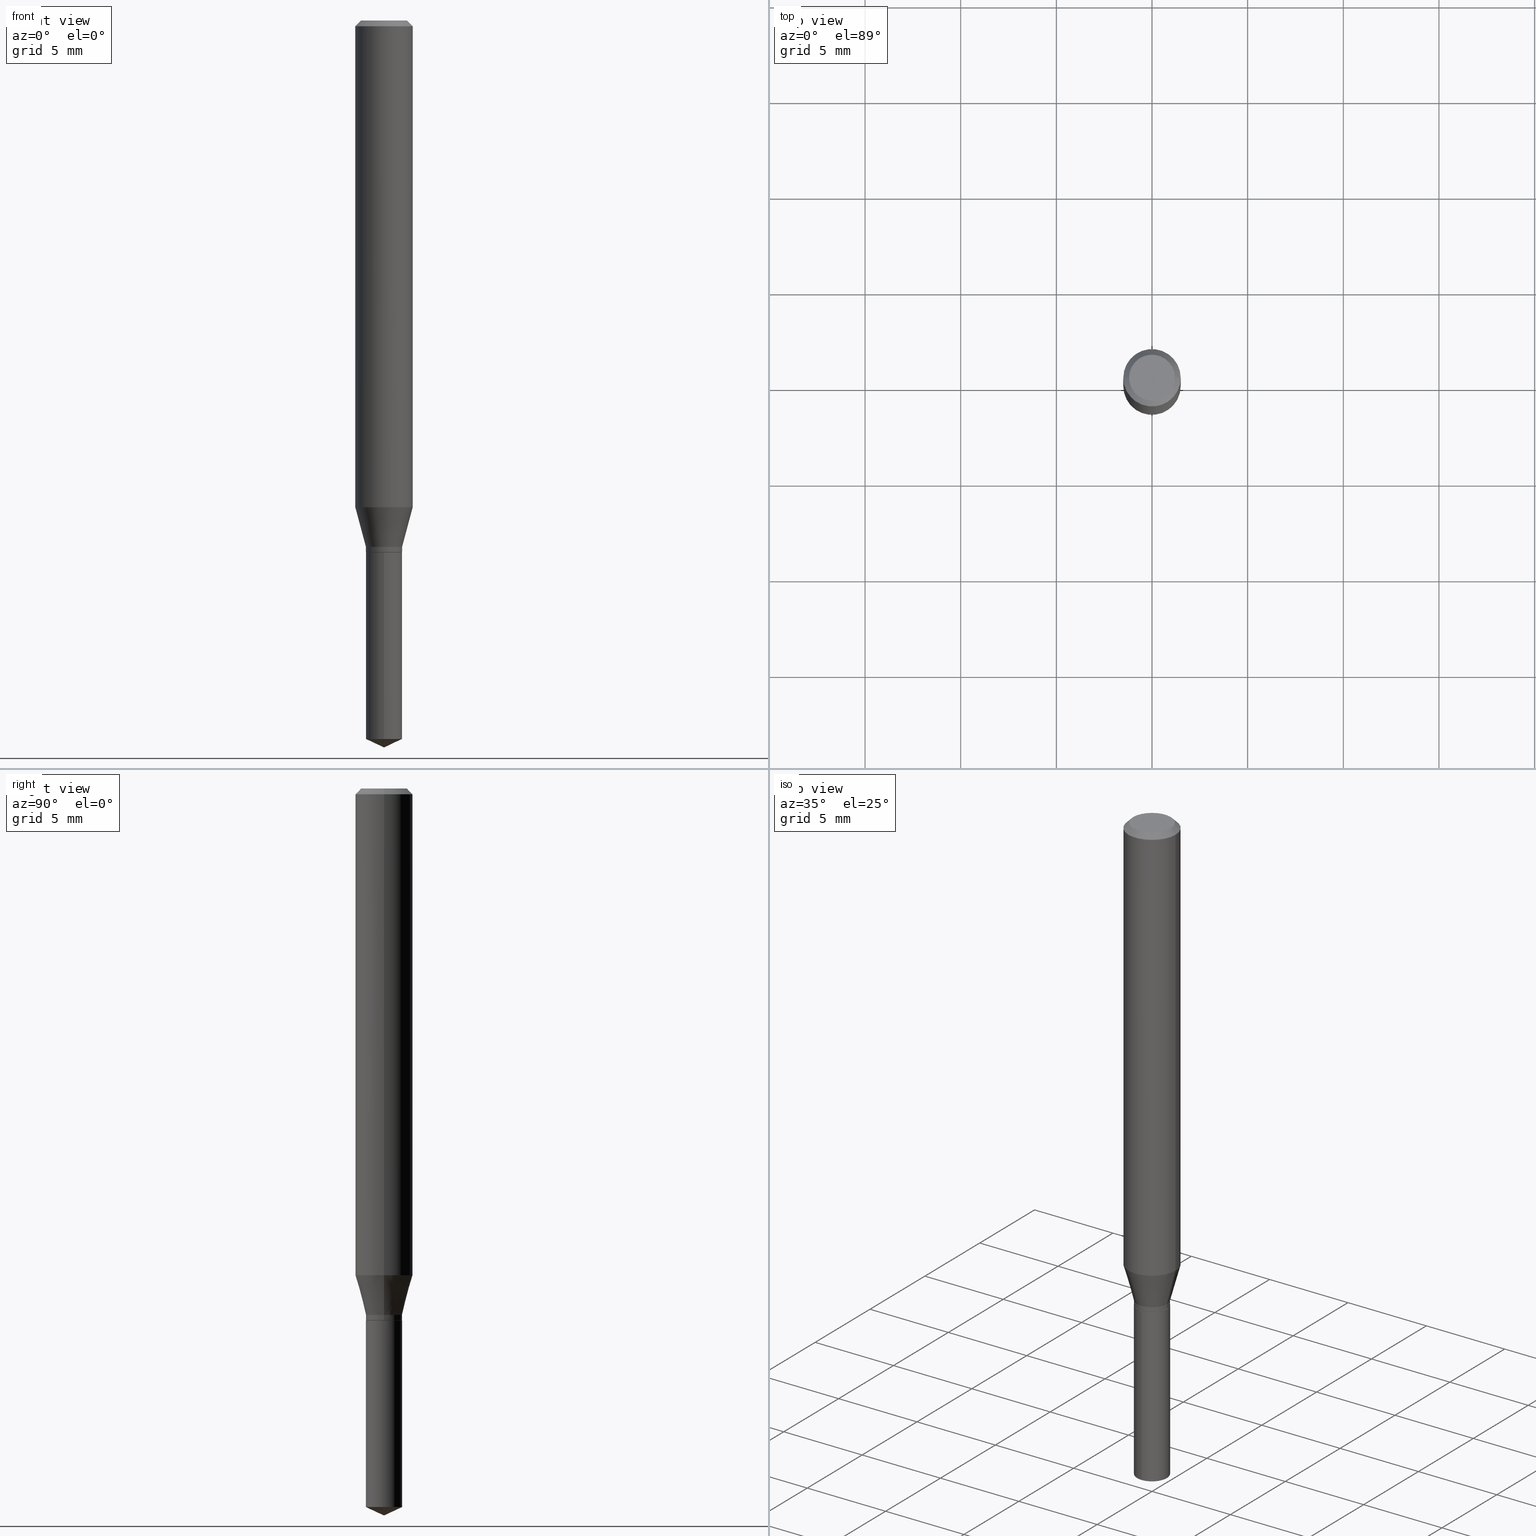
[diagram: canonical four-view strip — front | top / right | iso, engineering-drawing reading convention]
A machine part, canonical four-view strip (front | top / right | iso — engineering-drawing reading convention). The complete STEP part file that produces these views, byte-faithful:
ISO-10303-21;
HEADER;
FILE_DESCRIPTION (( 'STEP AP203' ),
    '1' );
FILE_NAME ('07931.STEP',
    '2024-04-24T06:31:16',
    ( '' ),
    ( '' ),
    'SwSTEP 2.0',
    'SolidWorks 2023',
    '' );
FILE_SCHEMA (( 'CONFIG_CONTROL_DESIGN' ));
ENDSEC;

DATA;
#1 = CYLINDRICAL_SURFACE ( 'NONE', #427, 0.05905000000000006077 ) ;
#2 = DATE_TIME_ROLE ( 'creation_date' ) ;
#3 = CARTESIAN_POINT ( 'NONE',  ( 2.676565608369631794E-29, -3.821426325363822773E-15, -1.094499999999999806 ) ) ;
#4 = AXIS2_PLACEMENT_3D ( 'NONE', #81, #306, #110 ) ;
#5 = DIRECTION ( 'NONE',  ( 1.000000000000000000, -6.982962677686266711E-15, 4.876176775795935793E-29 ) ) ;
#6 = VECTOR ( 'NONE', #11, 39.37007874015748854 ) ;
#7 = ADVANCED_FACE ( 'NONE', ( #235 ), #258, .T. ) ;
#8 = EDGE_LOOP ( 'NONE', ( #343, #455 ) ) ;
#9 = CARTESIAN_POINT ( 'NONE',  ( -0.03719999999999999696, -3.517999836666022170E-15, -1.083299999999999930 ) ) ;
#10 = EDGE_LOOP ( 'NONE', ( #72, #79, #127, #87 ) ) ;
#11 = DIRECTION ( 'NONE',  ( -0.2588190451025212391, 5.211531920934549464E-15, 0.9659258262890679791 ) ) ;
#12 = ORIENTED_EDGE ( 'NONE', *, *, #478, .T. ) ;
#13 = CARTESIAN_POINT ( 'NONE',  ( 0.03719999999999999696, -4.042087945978708713E-15, -1.083299999999999930 ) ) ;
#14 = DIRECTION ( 'NONE',  ( -6.982962677686267499E-15, -1.000000000000000000, 3.520397390770430993E-15 ) ) ;
#15 = AXIS2_PLACEMENT_3D ( 'NONE', #268, #205, #431 ) ;
#16 = AXIS2_PLACEMENT_3D ( 'NONE', #174, #141, #453 ) ;
#17 = ORIENTED_EDGE ( 'NONE', *, *, #412, .F. ) ;
#18 = CARTESIAN_POINT ( 'NONE',  ( -2.597662116099023268E-16, -0.03720000000000382029, -1.094499999999999806 ) ) ;
#19 = VERTEX_POINT ( 'NONE', #85 ) ;
#20 = LINE ( 'NONE', #360, #111 ) ;
#21 = ORIENTED_EDGE ( 'NONE', *, *, #74, .T. ) ;
#22 = AXIS2_PLACEMENT_3D ( 'NONE', #472, #368, #135 ) ;
#23 = AXIS2_PLACEMENT_3D ( 'NONE', #3, #490, #460 ) ;
#24 = EDGE_CURVE ( 'NONE', #435, #106, #304, .T. ) ;
#25 = AXIS2_PLACEMENT_3D ( 'NONE', #409, #380, #331 ) ;
#26 = CARTESIAN_POINT ( 'NONE',  ( -0.05904999999999999832, -1.349845614702532222E-15, -0.01181000000000006871 ) ) ;
#27 = DIRECTION ( 'NONE',  ( -2.445468806185136597E-29, 3.491481338843145583E-15, 1.000000000000000000 ) ) ;
#28 = FACE_OUTER_BOUND ( 'NONE', #394, .T. ) ;
#29 = EDGE_CURVE ( 'NONE', #421, #307, #217, .T. ) ;
#30 = CIRCLE ( 'NONE', #466, 0.03719999999999999696 ) ;
#31 = LOCAL_TIME ( 2, 31, 16.00000000000000000, #459 ) ;
#32 = CARTESIAN_POINT ( 'NONE',  ( 2.675342873966538993E-29, -3.819680584694400481E-15, -1.093999999999999861 ) ) ;
#33 = EDGE_CURVE ( 'NONE', #359, #416, #284, .T. ) ;
#34 = DIRECTION ( 'NONE',  ( -2.445468806185136597E-29, 3.491481338843145583E-15, 1.000000000000000000 ) ) ;
#35 = PERSON_AND_ORGANIZATION_ROLE ( 'creator' ) ;
#36 = FACE_OUTER_BOUND ( 'NONE', #305, .T. ) ;
#37 = PLANE ( 'NONE',  #285 ) ;
#38 = CALENDAR_DATE ( 2024, 24, 4 ) ;
#39 = ORIENTED_EDGE ( 'NONE', *, *, #378, .T. ) ;
#40 = CYLINDRICAL_SURFACE ( 'NONE', #311, 0.05905000000000006077 ) ;
#41 = DIRECTION ( 'NONE',  ( 2.438088387897960049E-29, -3.491481338843145188E-15, -1.000000000000000000 ) ) ;
#42 = CYLINDRICAL_SURFACE ( 'NONE', #175, 0.03719999999999999696 ) ;
#43 = DIRECTION ( 'NONE',  ( -2.445458899330790108E-29, 3.491495526022433599E-15, 1.000000000000000000 ) ) ;
#44 = PERSON_AND_ORGANIZATION ( #236, #155 ) ;
#45 = ORIENTED_EDGE ( 'NONE', *, *, #270, .T. ) ;
#46 = DIRECTION ( 'NONE',  ( 1.000000000000000000, -6.982962677686266711E-15, 4.876176775795935793E-29 ) ) ;
#47 = ADVANCED_FACE ( 'NONE', ( #148 ), #265, .T. ) ;
#48 = DIRECTION ( 'NONE',  ( 2.445468806185136597E-29, -3.491481338843145583E-15, -1.000000000000000000 ) ) ;
#49 = CIRCLE ( 'NONE', #101, 0.04724000000000000421 ) ;
#50 = DIRECTION ( 'NONE',  ( -2.445468806185136597E-29, 3.491481338843145583E-15, 1.000000000000000000 ) ) ;
#51 = CONICAL_SURFACE ( 'NONE', #146, 0.03719999999999999696, 0.2617993877991499629 ) ;
#52 = ORIENTED_EDGE ( 'NONE', *, *, #24, .F. ) ;
#53 = EDGE_LOOP ( 'NONE', ( #356, #39, #198, #267 ) ) ;
#54 = DIRECTION ( 'NONE',  ( -2.445458899330790108E-29, 3.491495526022433205E-15, 1.000000000000000000 ) ) ;
#55 = EDGE_CURVE ( 'NONE', #220, #73, #49, .T. ) ;
#56 = EDGE_LOOP ( 'NONE', ( #382, #428, #117, #471 ) ) ;
#57 = VERTEX_POINT ( 'NONE', #423 ) ;
#58 = VECTOR ( 'NONE', #399, 39.37007874015748854 ) ;
#59 = AXIS2_PLACEMENT_3D ( 'NONE', #151, #280, #118 ) ;
#60 = DIRECTION ( 'NONE',  ( 1.000000000000000000, -6.982962677686265133E-15, 0.000000000000000000 ) ) ;
#61 = ADVANCED_FACE ( 'NONE', ( #229 ), #163, .T. ) ;
#62 =( CONVERSION_BASED_UNIT ( 'INCH', #93 ) LENGTH_UNIT ( ) NAMED_UNIT ( #252 ) );
#63 = CARTESIAN_POINT ( 'NONE',  ( 4.132873053354867254E-48, -5.900647395337818946E-34, -1.690012582823346072E-19 ) ) ;
#64 = DATE_AND_TIME ( #243, #113 ) ;
#65 = CIRCLE ( 'NONE', #461, 0.03719999999999999696 ) ;
#66 = CC_DESIGN_APPROVAL ( #189, ( #188 ) ) ;
#67 = EDGE_CURVE ( 'NONE', #73, #393, #124, .T. ) ;
#68 = MECHANICAL_CONTEXT ( 'NONE', #99, 'mechanical' ) ;
#69 = ORIENTED_EDGE ( 'NONE', *, *, #470, .F. ) ;
#70 = CARTESIAN_POINT ( 'NONE',  ( 0.000000000000000000, 0.000000000000000000, 0.000000000000000000 ) ) ;
#71 = CONICAL_SURFACE ( 'NONE', #94, 0.03719999999999999696, 0.2617993877991499629 ) ;
#72 = ORIENTED_EDGE ( 'NONE', *, *, #270, .F. ) ;
#73 = VERTEX_POINT ( 'NONE', #227 ) ;
#74 = EDGE_CURVE ( 'NONE', #57, #19, #391, .T. ) ;
#75 = CARTESIAN_POINT ( 'NONE',  ( 2.643218977027934365E-16, 0.03719999999999618057, -1.094500000000000028 ) ) ;
#76 = ORIENTED_EDGE ( 'NONE', *, *, #74, .F. ) ;
#77 = CARTESIAN_POINT ( 'NONE',  ( -0.03719999999999999696, 2.643218977027572475E-16, -1.829843853574824804E-30 ) ) ;
#78 = AXIS2_PLACEMENT_3D ( 'NONE', #425, #233, #180 ) ;
#79 = ORIENTED_EDGE ( 'NONE', *, *, #67, .T. ) ;
#80 = VECTOR ( 'NONE', #355, 39.37007874015748143 ) ;
#81 = CARTESIAN_POINT ( 'NONE',  ( 2.676565608369631794E-29, -3.821426325363822773E-15, -1.094499999999999806 ) ) ;
#82 = CC_DESIGN_PERSON_AND_ORGANIZATION_ASSIGNMENT ( #147, #484, ( #452 ) ) ;
#83 = ORIENTED_EDGE ( 'NONE', *, *, #126, .F. ) ;
#84 = CC_DESIGN_DATE_AND_TIME_ASSIGNMENT ( #338, #2, ( #489 ) ) ;
#85 = CARTESIAN_POINT ( 'NONE',  ( 0.03669999999999999651, -4.077701055634908175E-15, -1.094499999999999806 ) ) ;
#86 = CARTESIAN_POINT ( 'NONE',  ( 2.676565608369631794E-29, -3.821426325363822773E-15, -1.094499999999999806 ) ) ;
#87 = ORIENTED_EDGE ( 'NONE', *, *, #291, .F. ) ;
#88 = CARTESIAN_POINT ( 'NONE',  ( -0.03669999999999999651, -3.560657141339866326E-15, -1.094499999999999806 ) ) ;
#89 = ORIENTED_EDGE ( 'NONE', *, *, #302, .F. ) ;
#90 = AXIS2_PLACEMENT_3D ( 'NONE', #314, #152, #210 ) ;
#91 = CC_DESIGN_APPROVAL ( #288, ( #489 ) ) ;
#92 = ADVANCED_FACE ( 'NONE', ( #209 ), #364, .T. ) ;
#93 = LENGTH_MEASURE_WITH_UNIT ( LENGTH_MEASURE( 0.02539999999999999897 ), #133 );
#94 = AXIS2_PLACEMENT_3D ( 'NONE', #193, #403, #60 ) ;
#95 = EDGE_CURVE ( 'NONE', #106, #153, #448, .T. ) ;
#96 = FACE_OUTER_BOUND ( 'NONE', #53, .T. ) ;
#97 = DIRECTION ( 'NONE',  ( -2.445468806185136877E-29, 3.491481338843145188E-15, 1.000000000000000000 ) ) ;
#98 = DIRECTION ( 'NONE',  ( 1.000000000000000000, -6.982962677686265133E-15, 0.000000000000000000 ) ) ;
#99 = APPLICATION_CONTEXT ( 'configuration controlled 3d designs of mechanical parts and assemblies' ) ;
#100 = CARTESIAN_POINT ( 'NONE',  ( 2.643218977027839702E-16, 0.03719999999999618057, -1.094500000000000028 ) ) ;
#101 = AXIS2_PLACEMENT_3D ( 'NONE', #462, #115, #263 ) ;
#102 = AXIS2_PLACEMENT_3D ( 'NONE', #211, #27, #450 ) ;
#103 = DIRECTION ( 'NONE',  ( -2.445468806185136597E-29, 3.491481338843145583E-15, 1.000000000000000000 ) ) ;
#104 = EDGE_CURVE ( 'NONE', #416, #359, #442, .T. ) ;
#105 = APPROVAL_STATUS ( 'not_yet_approved' ) ;
#106 = VERTEX_POINT ( 'NONE', #13 ) ;
#107 = FACE_OUTER_BOUND ( 'NONE', #207, .T. ) ;
#108 = PERSON_AND_ORGANIZATION ( #236, #155 ) ;
#109 = CARTESIAN_POINT ( 'NONE',  ( 0.03669999999999999651, -4.077701055634908175E-15, -1.094499999999999806 ) ) ;
#110 = DIRECTION ( 'NONE',  ( -6.982962677686266711E-15, -1.000000000000000000, 3.671838701161644582E-15 ) ) ;
#111 = VECTOR ( 'NONE', #160, 39.37007874015748143 ) ;
#112 = APPROVAL_ROLE ( '' ) ;
#113 = LOCAL_TIME ( 2, 31, 16.00000000000000000, #322 ) ;
#114 = LINE ( 'NONE', #109, #354 ) ;
#115 = DIRECTION ( 'NONE',  ( -2.445468806185136597E-29, 3.491481338843145583E-15, 1.000000000000000000 ) ) ;
#116 = EDGE_CURVE ( 'NONE', #57, #395, #123, .T. ) ;
#117 = ORIENTED_EDGE ( 'NONE', *, *, #402, .T. ) ;
#118 = DIRECTION ( 'NONE',  ( 1.000000000000000000, -6.982962677686265133E-15, 0.000000000000000000 ) ) ;
#119 =( GEOMETRIC_REPRESENTATION_CONTEXT ( 3 ) GLOBAL_UNCERTAINTY_ASSIGNED_CONTEXT ( ( #161 ) ) GLOBAL_UNIT_ASSIGNED_CONTEXT ( ( #62, #444, #131 ) ) REPRESENTATION_CONTEXT ( 'NONE', 'WORKASPACE' ) );
#120 = FACE_OUTER_BOUND ( 'NONE', #182, .T. ) ;
#121 = ORIENTED_EDGE ( 'NONE', *, *, #434, .F. ) ;
#122 = ORIENTED_EDGE ( 'NONE', *, *, #137, .T. ) ;
#123 = LINE ( 'NONE', #88, #58 ) ;
#124 = LINE ( 'NONE', #488, #465 ) ;
#125 = ORIENTED_EDGE ( 'NONE', *, *, #478, .F. ) ;
#126 = EDGE_CURVE ( 'NONE', #353, #421, #201, .T. ) ;
#127 = ORIENTED_EDGE ( 'NONE', *, *, #470, .T. ) ;
#128 = AXIS2_PLACEMENT_3D ( 'NONE', #313, #239, #405 ) ;
#129 = EDGE_LOOP ( 'NONE', ( #458, #21, #335, #309 ) ) ;
#130 = DIRECTION ( 'NONE',  ( -2.445458899330790108E-29, 3.491495526022433205E-15, 1.000000000000000000 ) ) ;
#131 =( NAMED_UNIT ( * ) SI_UNIT ( $, .STERADIAN. ) SOLID_ANGLE_UNIT ( ) );
#132 = VECTOR ( 'NONE', #377, 39.37007874015748854 ) ;
#133 =( LENGTH_UNIT ( ) NAMED_UNIT ( * ) SI_UNIT ( $, .METRE. ) );
#134 = PERSON_AND_ORGANIZATION ( #236, #155 ) ;
#135 = DIRECTION ( 'NONE',  ( 1.000000000000000000, -6.982962677686266711E-15, 0.000000000000000000 ) ) ;
#136 = CARTESIAN_POINT ( 'NONE',  ( 2.643218977027933379E-16, 0.03719999999999482748, -1.478753355116634083 ) ) ;
#137 = EDGE_CURVE ( 'NONE', #473, #393, #475, .T. ) ;
#138 = DIRECTION ( 'NONE',  ( -2.445468806185136597E-29, 3.491481338843145583E-15, 1.000000000000000000 ) ) ;
#139 = AXIS2_PLACEMENT_3D ( 'NONE', #401, #242, #159 ) ;
#140 = VECTOR ( 'NONE', #274, 39.37007874015748143 ) ;
#141 = DIRECTION ( 'NONE',  ( -2.445468806185136597E-29, 3.491481338843145583E-15, 1.000000000000000000 ) ) ;
#142 = EDGE_CURVE ( 'NONE', #416, #473, #168, .T. ) ;
#143 = EDGE_LOOP ( 'NONE', ( #238, #271, #194, #122 ) ) ;
#144 = PRODUCT_DEFINITION_SHAPE ( 'NONE', 'NONE',  #489 ) ;
#145 = CLOSED_SHELL ( 'NONE', ( #7, #92, #61, #369, #216 ) ) ;
#146 = AXIS2_PLACEMENT_3D ( 'NONE', #169, #219, #376 ) ;
#147 = PERSON_AND_ORGANIZATION ( #236, #155 ) ;
#148 = FACE_OUTER_BOUND ( 'NONE', #143, .T. ) ;
#149 = DIRECTION ( 'NONE',  ( -2.445458899330790108E-29, 3.491495526022433205E-15, 1.000000000000000000 ) ) ;
#150 = DIRECTION ( 'NONE',  ( -2.445468806185136877E-29, 3.491481338843145188E-15, 1.000000000000000000 ) ) ;
#151 = CARTESIAN_POINT ( 'NONE',  ( 2.649176357740358198E-29, -3.782321734368779516E-15, -1.083299999999999930 ) ) ;
#152 = DIRECTION ( 'NONE',  ( -2.445468806185136597E-29, 3.491481338843145583E-15, 1.000000000000000000 ) ) ;
#153 = VERTEX_POINT ( 'NONE', #213 ) ;
#154 = AXIS2_PLACEMENT_3D ( 'NONE', #358, #275, #370 ) ;
#155 = ORGANIZATION ( 'UNSPECIFIED', 'UNSPECIFIED', '' ) ;
#156 = ORIENTED_EDGE ( 'NONE', *, *, #24, .T. ) ;
#157 = ADVANCED_FACE ( 'NONE', ( #28 ), #51, .T. ) ;
#158 = ORIENTED_EDGE ( 'NONE', *, *, #95, .F. ) ;
#159 = DIRECTION ( 'NONE',  ( -6.982962677686267499E-15, -1.000000000000000000, 3.520397390770430993E-15 ) ) ;
#160 = DIRECTION ( 'NONE',  ( -6.328713451373382000E-15, -0.9063077870366502697, 0.4226182617406987196 ) ) ;
#161 = UNCERTAINTY_MEASURE_WITH_UNIT (LENGTH_MEASURE( 1.000000000000000082E-05 ), #62, 'distance_accuracy_value', 'NONE');
#162 = ORIENTED_EDGE ( 'NONE', *, *, #386, .T. ) ;
#163 = CONICAL_SURFACE ( 'NONE', #310, 84.42940631927488937, 1.134464013796318449 ) ;
#164 = CARTESIAN_POINT ( 'NONE',  ( -0.04724000000000000421, 3.504923541997677355E-16, -3.380025165670481712E-19 ) ) ;
#165 = EDGE_CURVE ( 'NONE', #435, #395, #30, .T. ) ;
#166 = PERSON_AND_ORGANIZATION_ROLE ( 'classification_officer' ) ;
#167 = CC_DESIGN_PERSON_AND_ORGANIZATION_ASSIGNMENT ( #179, #35, ( #489 ) ) ;
#168 = LINE ( 'NONE', #290, #246 ) ;
#169 = CARTESIAN_POINT ( 'NONE',  ( 2.649176357740358198E-29, -3.782321734368779516E-15, -1.083299999999999930 ) ) ;
#170 = AXIS2_PLACEMENT_3D ( 'NONE', #257, #333, #485 ) ;
#171 = CC_DESIGN_APPROVAL ( #312, ( #293 ) ) ;
#172 = CC_DESIGN_PERSON_AND_ORGANIZATION_ASSIGNMENT ( #317, #406, ( #293 ) ) ;
#173 = ADVANCED_FACE ( 'NONE', ( #337 ), #202, .T. ) ;
#174 = CARTESIAN_POINT ( 'NONE',  ( 2.676565608369631794E-29, -3.821426325363822773E-15, -1.094499999999999806 ) ) ;
#175 = AXIS2_PLACEMENT_3D ( 'NONE', #70, #138, #46 ) ;
#176 = DIRECTION ( 'NONE',  ( 0.7071067811865453523, -7.319954787623248157E-15, -0.7071067811865496822 ) ) ;
#177 = EDGE_CURVE ( 'NONE', #240, #307, #254, .T. ) ;
#178 = DIRECTION ( 'NONE',  ( 1.000000000000000000, -6.982962677686265133E-15, 0.000000000000000000 ) ) ;
#179 = PERSON_AND_ORGANIZATION ( #236, #155 ) ;
#180 = DIRECTION ( 'NONE',  ( 1.000000000000000000, -6.982962677686265133E-15, 0.000000000000000000 ) ) ;
#181 = CARTESIAN_POINT ( 'NONE',  ( 0.000000000000000000, 0.000000000000000000, 0.000000000000000000 ) ) ;
#182 = EDGE_LOOP ( 'NONE', ( #200, #346, #158, #52 ) ) ;
#183 = PERSON_AND_ORGANIZATION_ROLE ( 'creator' ) ;
#184 = ORIENTED_EDGE ( 'NONE', *, *, #247, .T. ) ;
#185 = AXIS2_PLACEMENT_3D ( 'NONE', #344, #347, #192 ) ;
#186 = CIRCLE ( 'NONE', #102, 0.04724000000000000421 ) ;
#187 = ORIENTED_EDGE ( 'NONE', *, *, #378, .F. ) ;
#188 = SECURITY_CLASSIFICATION ( '', '', #479 ) ;
#189 = APPROVAL ( #365, 'UNSPECIFIED' ) ;
#190 = ADVANCED_FACE ( 'NONE', ( #342 ), #329, .T. ) ;
#191 = ORIENTED_EDGE ( 'NONE', *, *, #29, .F. ) ;
#192 = DIRECTION ( 'NONE',  ( 1.000000000000000000, -6.982962677686266711E-15, 0.000000000000000000 ) ) ;
#193 = CARTESIAN_POINT ( 'NONE',  ( 2.649176357740358198E-29, -3.782321734368779516E-15, -1.083299999999999930 ) ) ;
#194 = ORIENTED_EDGE ( 'NONE', *, *, #291, .T. ) ;
#195 = LINE ( 'NONE', #9, #6 ) ;
#196 = FACE_OUTER_BOUND ( 'NONE', #8, .T. ) ;
#197 = DIRECTION ( 'NONE',  ( -2.445458899330790108E-29, 3.491495526022433205E-15, 1.000000000000000000 ) ) ;
#198 = ORIENTED_EDGE ( 'NONE', *, *, #33, .F. ) ;
#199 = DIRECTION ( 'NONE',  ( -2.445468806185136597E-29, 3.491481338843145583E-15, 1.000000000000000000 ) ) ;
#200 = ORIENTED_EDGE ( 'NONE', *, *, #165, .T. ) ;
#201 = LINE ( 'NONE', #18, #292 ) ;
#202 = CONICAL_SURFACE ( 'NONE', #437, 0.03669999999999999651, 0.7853981633974141952 ) ;
#203 = CARTESIAN_POINT ( 'NONE',  ( 0.05905000000000006077, -4.123439461173744764E-16, 2.879382386107503023E-30 ) ) ;
#204 = PLANE ( 'NONE',  #154 ) ;
#205 = DIRECTION ( 'NONE',  ( -2.445468806185136597E-29, 3.491481338843145583E-15, 1.000000000000000000 ) ) ;
#206 = LINE ( 'NONE', #203, #140 ) ;
#207 = EDGE_LOOP ( 'NONE', ( #276, #184, #156, #318 ) ) ;
#208 = ADVANCED_FACE ( 'NONE', ( #367 ), #37, .F. ) ;
#209 = FACE_OUTER_BOUND ( 'NONE', #269, .T. ) ;
#210 = DIRECTION ( 'NONE',  ( 1.000000000000000000, -6.982962677686266711E-15, 0.000000000000000000 ) ) ;
#211 = CARTESIAN_POINT ( 'NONE',  ( 8.265746106709734507E-48, -1.180129479067563789E-33, -3.380025165646692144E-19 ) ) ;
#212 = DATE_AND_TIME ( #241, #443 ) ;
#213 = CARTESIAN_POINT ( 'NONE',  ( -0.03719999999999999696, -3.536679261828832652E-15, -1.083299999999999930 ) ) ;
#214 = CYLINDRICAL_SURFACE ( 'NONE', #411, 0.03719999999999999696 ) ;
#215 = SHAPE_DEFINITION_REPRESENTATION ( #144, #327 ) ;
#216 = ADVANCED_FACE ( 'NONE', ( #196 ), #204, .F. ) ;
#217 = CIRCLE ( 'NONE', #4, 0.03719999999999999696 ) ;
#218 = AXIS2_PLACEMENT_3D ( 'NONE', #447, #372, #98 ) ;
#219 = DIRECTION ( 'NONE',  ( -2.445468806185136597E-29, 3.491481338843145583E-15, 1.000000000000000000 ) ) ;
#220 = VERTEX_POINT ( 'NONE', #164 ) ;
#221 = ADVANCED_FACE ( 'NONE', ( #96 ), #71, .T. ) ;
#222 = COORDINATED_UNIVERSAL_TIME_OFFSET ( 5, 0, .BEHIND. ) ;
#223 = ORIENTED_EDGE ( 'NONE', *, *, #482, .F. ) ;
#224 = ORIENTED_EDGE ( 'NONE', *, *, #177, .F. ) ;
#225 = ORIENTED_EDGE ( 'NONE', *, *, #177, .T. ) ;
#226 = ORIENTED_EDGE ( 'NONE', *, *, #116, .T. ) ;
#227 = CARTESIAN_POINT ( 'NONE',  ( 0.04724000000000000421, -3.852183633974369345E-16, -3.380025165621689721E-19 ) ) ;
#228 = ADVANCED_FACE ( 'NONE', ( #352 ), #487, .T. ) ;
#229 = FACE_OUTER_BOUND ( 'NONE', #234, .T. ) ;
#230 = CIRCLE ( 'NONE', #277, 0.03719999999999999696 ) ;
#231 = AXIS2_PLACEMENT_3D ( 'NONE', #86, #199, #373 ) ;
#232 = ORIENTED_EDGE ( 'NONE', *, *, #348, .F. ) ;
#233 = DIRECTION ( 'NONE',  ( -2.445468806185136597E-29, 3.491481338843145583E-15, 1.000000000000000000 ) ) ;
#234 = EDGE_LOOP ( 'NONE', ( #125, #430, #121 ) ) ;
#235 = FACE_OUTER_BOUND ( 'NONE', #362, .T. ) ;
#236 = PERSON ( 'UNSPECIFIED', 'UNSPECIFIED', 'UNSPECIFIED', ('UNSPECIFIED'), ('UNSPECIFIED'), ('UNSPECIFIED') ) ;
#237 = ADVANCED_FACE ( 'NONE', ( #120 ), #214, .T. ) ;
#238 = ORIENTED_EDGE ( 'NONE', *, *, #67, .F. ) ;
#239 = DIRECTION ( 'NONE',  ( 2.445468806185136597E-29, -3.491481338843145583E-15, -1.000000000000000000 ) ) ;
#240 = VERTEX_POINT ( 'NONE', #136 ) ;
#241 = CALENDAR_DATE ( 2024, 24, 4 ) ;
#242 = DIRECTION ( 'NONE',  ( -2.445458899330790108E-29, 3.491495526022433205E-15, 1.000000000000000000 ) ) ;
#243 = CALENDAR_DATE ( 2024, 24, 4 ) ;
#244 = PLANE ( 'NONE',  #384 ) ;
#245 = LINE ( 'NONE', #77, #80 ) ;
#246 = VECTOR ( 'NONE', #97, 39.37007874015748143 ) ;
#247 = EDGE_CURVE ( 'NONE', #395, #435, #324, .T. ) ;
#248 = APPROVAL_ROLE ( '' ) ;
#249 = ORIENTED_EDGE ( 'NONE', *, *, #426, .T. ) ;
#250 = CARTESIAN_POINT ( 'NONE',  ( 0.000000000000000000, 0.000000000000000000, 0.000000000000000000 ) ) ;
#251 = CARTESIAN_POINT ( 'NONE',  ( 0.05905000000000011628, -3.909951751843382594E-15, -1.001754689854619684 ) ) ;
#252 = DIMENSIONAL_EXPONENTS ( 1.000000000000000000, 0.000000000000000000, 0.000000000000000000, 0.000000000000000000, 0.000000000000000000, 0.000000000000000000, 0.000000000000000000 ) ;
#253 = CARTESIAN_POINT ( 'NONE',  ( 2.888098660104663328E-31, -4.123439461173779030E-17, -0.01181000000000006871 ) ) ;
#254 = LINE ( 'NONE', #100, #417 ) ;
#255 = CIRCLE ( 'NONE', #374, 0.03719999999999999696 ) ;
#256 = ORIENTED_EDGE ( 'NONE', *, *, #434, .T. ) ;
#257 = CARTESIAN_POINT ( 'NONE',  ( 2.676565608369631794E-29, -3.821426325363822773E-15, -1.094499999999999806 ) ) ;
#258 = CYLINDRICAL_SURFACE ( 'NONE', #400, 0.03719999999999999696 ) ;
#259 = CC_DESIGN_PERSON_AND_ORGANIZATION_ASSIGNMENT ( #108, #183, ( #293 ) ) ;
#260 = DATE_AND_TIME ( #413, #31 ) ;
#261 = ADVANCED_FACE ( 'NONE', ( #481 ), #244, .F. ) ;
#262 = CARTESIAN_POINT ( 'NONE',  ( -2.597662116098928605E-16, -0.03720000000000515950, -1.478753355116634083 ) ) ;
#263 = DIRECTION ( 'NONE',  ( 1.000000000000000000, -6.982962677686266711E-15, 4.876185090822587894E-29 ) ) ;
#264 = CARTESIAN_POINT ( 'NONE',  ( 0.03719999999999999696, -4.079446796304329678E-15, -1.093999999999999861 ) ) ;
#265 = CONICAL_SURFACE ( 'NONE', #323, 0.05904999999999999832, 0.7853981633974452814 ) ;
#266 = VECTOR ( 'NONE', #315, 39.37007874015748854 ) ;
#267 = ORIENTED_EDGE ( 'NONE', *, *, #386, .F. ) ;
#268 = CARTESIAN_POINT ( 'NONE',  ( 2.449759845489138427E-29, -3.497607805726007280E-15, -1.001754689854619684 ) ) ;
#269 = EDGE_LOOP ( 'NONE', ( #17, #12, #223 ) ) ;
#270 = EDGE_CURVE ( 'NONE', #73, #220, #186, .T. ) ;
#271 = ORIENTED_EDGE ( 'NONE', *, *, #55, .F. ) ;
#272 = DIRECTION ( 'NONE',  ( 1.000000000000000000, -6.982962677686265133E-15, 0.000000000000000000 ) ) ;
#273 = EDGE_LOOP ( 'NONE', ( #295, #76 ) ) ;
#274 = DIRECTION ( 'NONE',  ( -2.445468806185136877E-29, 3.491481338843145188E-15, 1.000000000000000000 ) ) ;
#275 = DIRECTION ( 'NONE',  ( 2.445458899330789267E-29, -3.491495526022433599E-15, -1.000000000000000000 ) ) ;
#276 = ORIENTED_EDGE ( 'NONE', *, *, #456, .F. ) ;
#277 = AXIS2_PLACEMENT_3D ( 'NONE', #278, #50, #272 ) ;
#278 = CARTESIAN_POINT ( 'NONE',  ( 2.649176357740358198E-29, -3.782321734368779516E-15, -1.083299999999999930 ) ) ;
#279 = APPROVAL_PERSON_ORGANIZATION ( #44, #288, #112 ) ;
#280 = DIRECTION ( 'NONE',  ( -2.445468806185136597E-29, 3.491481338843145583E-15, 1.000000000000000000 ) ) ;
#281 = ADVANCED_FACE ( 'NONE', ( #381 ), #1, .T. ) ;
#282 = LINE ( 'NONE', #326, #132 ) ;
#283 = DESIGN_CONTEXT ( 'detailed design', #414, 'design' ) ;
#284 = CIRCLE ( 'NONE', #185, 0.05905000000000011628 ) ;
#285 = AXIS2_PLACEMENT_3D ( 'NONE', #63, #41, #396 ) ;
#286 = DIRECTION ( 'NONE',  ( 1.000000000000000000, -6.982962677686266711E-15, 4.876176775795935793E-29 ) ) ;
#287 = APPROVAL_PERSON_ORGANIZATION ( #441, #189, #476 ) ;
#288 = APPROVAL ( #449, 'UNSPECIFIED' ) ;
#289 = DATE_TIME_ROLE ( 'classification_date' ) ;
#290 = CARTESIAN_POINT ( 'NONE',  ( -0.05905000000000006077, 4.195754854663395916E-16, -2.904631170795524694E-30 ) ) ;
#291 = EDGE_CURVE ( 'NONE', #220, #473, #332, .T. ) ;
#292 = VECTOR ( 'NONE', #319, 39.37007874015748143 ) ;
#293 = PRODUCT_DEFINITION_FORMATION_WITH_SPECIFIED_SOURCE ( 'ANY', '', #452, .NOT_KNOWN. ) ;
#294 = APPLICATION_PROTOCOL_DEFINITION ( 'international standard', 'config_control_design', 1994, #414 ) ;
#295 = ORIENTED_EDGE ( 'NONE', *, *, #440, .F. ) ;
#296 = DIRECTION ( 'NONE',  ( -2.445468806185136597E-29, 3.491481338843145583E-15, 1.000000000000000000 ) ) ;
#297 = APPROVAL_DATE_TIME ( #334, #312 ) ;
#298 = DIRECTION ( 'NONE',  ( 1.000000000000000000, -6.982962677686266711E-15, 4.876176775795935793E-29 ) ) ;
#299 = DIRECTION ( 'NONE',  ( 1.000000000000000000, -6.982962677686265133E-15, 0.000000000000000000 ) ) ;
#300 = CARTESIAN_POINT ( 'NONE',  ( 0.03719999999999999696, -2.597662116099290988E-16, 1.813937760596088050E-30 ) ) ;
#301 = VECTOR ( 'NONE', #389, 39.37007874015748143 ) ;
#302 = EDGE_CURVE ( 'NONE', #307, #421, #404, .T. ) ;
#303 = APPROVAL_DATE_TIME ( #260, #288 ) ;
#304 = LINE ( 'NONE', #300, #486 ) ;
#305 = EDGE_LOOP ( 'NONE', ( #224, #256, #477, #89 ) ) ;
#306 = DIRECTION ( 'NONE',  ( -2.445458899330790108E-29, 3.491495526022433205E-15, 1.000000000000000000 ) ) ;
#307 = VERTEX_POINT ( 'NONE', #75 ) ;
#308 = CARTESIAN_POINT ( 'NONE',  ( 0.03719999999999999696, -4.042087945978708713E-15, -1.083299999999999930 ) ) ;
#309 = ORIENTED_EDGE ( 'NONE', *, *, #247, .F. ) ;
#310 = AXIS2_PLACEMENT_3D ( 'NONE', #392, #197, #14 ) ;
#311 = AXIS2_PLACEMENT_3D ( 'NONE', #181, #103, #5 ) ;
#312 = APPROVAL ( #105, 'UNSPECIFIED' ) ;
#313 = CARTESIAN_POINT ( 'NONE',  ( 2.888098660104663328E-31, -4.123439461173779030E-17, -0.01181000000000006871 ) ) ;
#314 = CARTESIAN_POINT ( 'NONE',  ( 2.888098660104663328E-31, -4.123439461173779030E-17, -0.01181000000000006871 ) ) ;
#315 = DIRECTION ( 'NONE',  ( 0.2588190451025212391, 1.565188264969622362E-15, 0.9659258262890679791 ) ) ;
#316 = MANIFOLD_SOLID_BREP ( 'Body-Move/Copy2[1]', #145 ) ;
#317 = PERSON_AND_ORGANIZATION ( #236, #155 ) ;
#318 = ORIENTED_EDGE ( 'NONE', *, *, #426, .F. ) ;
#319 = DIRECTION ( 'NONE',  ( -2.445458899330790108E-29, 3.491495526022433599E-15, 1.000000000000000000 ) ) ;
#320 = CARTESIAN_POINT ( 'NONE',  ( -0.03719999999999999696, -3.536679261828832652E-15, -1.093999999999999861 ) ) ;
#321 = ADVANCED_FACE ( 'NONE', ( #107 ), #42, .T. ) ;
#322 = COORDINATED_UNIVERSAL_TIME_OFFSET ( 5, 0, .BEHIND. ) ;
#323 = AXIS2_PLACEMENT_3D ( 'NONE', #253, #48, #419 ) ;
#324 = CIRCLE ( 'NONE', #218, 0.03719999999999999696 ) ;
#325 = DIRECTION ( 'NONE',  ( -2.438088387897960049E-29, 3.491481338843145188E-15, 1.000000000000000000 ) ) ;
#326 = CARTESIAN_POINT ( 'NONE',  ( 3.658672935554494692E-29, -5.223595400746700193E-15, -1.496099999999999985 ) ) ;
#327 = ADVANCED_BREP_SHAPE_REPRESENTATION ( '07931', ( #316, #483, #25 ), #119 ) ;
#328 = CARTESIAN_POINT ( 'NONE',  ( 3.616241395237319644E-29, -5.163045195612661158E-15, -1.478753355116634083 ) ) ;
#329 = CONICAL_SURFACE ( 'NONE', #128, 0.05904999999999999832, 0.7853981633974452814 ) ;
#330 = DIRECTION ( 'NONE',  ( -2.445468806185136597E-29, 3.491481338843145583E-15, 1.000000000000000000 ) ) ;
#331 = DIRECTION ( 'NONE',  ( 1.000000000000000000, 0.000000000000000000, 0.000000000000000000 ) ) ;
#332 = LINE ( 'NONE', #387, #301 ) ;
#333 = DIRECTION ( 'NONE',  ( -2.445458899330790108E-29, 3.491495526022433205E-15, 1.000000000000000000 ) ) ;
#334 = DATE_AND_TIME ( #38, #418 ) ;
#335 = ORIENTED_EDGE ( 'NONE', *, *, #348, .T. ) ;
#336 = EDGE_LOOP ( 'NONE', ( #424, #351, #69, #398 ) ) ;
#337 = FACE_OUTER_BOUND ( 'NONE', #129, .T. ) ;
#338 = DATE_AND_TIME ( #454, #451 ) ;
#339 = CYLINDRICAL_SURFACE ( 'NONE', #23, 0.03719999999999999696 ) ;
#340 = ADVANCED_FACE ( 'NONE', ( #383 ), #40, .T. ) ;
#341 = CARTESIAN_POINT ( 'NONE',  ( 2.676565608369631794E-29, -3.821426325363822773E-15, -1.094499999999999806 ) ) ;
#342 = FACE_OUTER_BOUND ( 'NONE', #10, .T. ) ;
#343 = ORIENTED_EDGE ( 'NONE', *, *, #29, .T. ) ;
#344 = CARTESIAN_POINT ( 'NONE',  ( 2.449759845489138427E-29, -3.497607805726007280E-15, -1.001754689854619684 ) ) ;
#345 = CIRCLE ( 'NONE', #16, 0.03669999999999999651 ) ;
#346 = ORIENTED_EDGE ( 'NONE', *, *, #456, .T. ) ;
#347 = DIRECTION ( 'NONE',  ( -2.445468806185136597E-29, 3.491481338843145583E-15, 1.000000000000000000 ) ) ;
#348 = EDGE_CURVE ( 'NONE', #19, #435, #114, .T. ) ;
#349 = ORIENTED_EDGE ( 'NONE', *, *, #55, .T. ) ;
#350 = CARTESIAN_POINT ( 'NONE',  ( 0.05904999999999999832, -4.535783407291118600E-16, -0.01181000000000006871 ) ) ;
#351 = ORIENTED_EDGE ( 'NONE', *, *, #142, .T. ) ;
#352 = FACE_OUTER_BOUND ( 'NONE', #468, .T. ) ;
#353 = VERTEX_POINT ( 'NONE', #262 ) ;
#354 = VECTOR ( 'NONE', #415, 39.37007874015748854 ) ;
#355 = DIRECTION ( 'NONE',  ( -2.445468806185136877E-29, 3.491481338843145188E-15, 1.000000000000000000 ) ) ;
#356 = ORIENTED_EDGE ( 'NONE', *, *, #95, .T. ) ;
#357 = DIRECTION ( 'NONE',  ( -6.982962677686265133E-15, -1.000000000000000000, 0.000000000000000000 ) ) ;
#358 = CARTESIAN_POINT ( 'NONE',  ( 2.676565608369631794E-29, -3.821426325363822773E-15, -1.094499999999999806 ) ) ;
#359 = VERTEX_POINT ( 'NONE', #251 ) ;
#360 = CARTESIAN_POINT ( 'NONE',  ( 3.658651059288795076E-29, -5.223626456482161457E-15, -1.496099999999999985 ) ) ;
#361 = APPROVAL_DATE_TIME ( #212, #189 ) ;
#362 = EDGE_LOOP ( 'NONE', ( #390, #225, #191, #83 ) ) ;
#363 = CARTESIAN_POINT ( 'NONE',  ( 2.676565608369631794E-29, -3.821426325363822773E-15, -1.094499999999999806 ) ) ;
#364 = CONICAL_SURFACE ( 'NONE', #139, 84.42940631927488937, 1.134464013796318449 ) ;
#365 = APPROVAL_STATUS ( 'not_yet_approved' ) ;
#366 = CIRCLE ( 'NONE', #90, 0.05904999999999999832 ) ;
#367 = FACE_OUTER_BOUND ( 'NONE', #438, .T. ) ;
#368 = DIRECTION ( 'NONE',  ( -2.445468806185136597E-29, 3.491481338843145583E-15, 1.000000000000000000 ) ) ;
#369 = ADVANCED_FACE ( 'NONE', ( #36 ), #339, .T. ) ;
#370 = DIRECTION ( 'NONE',  ( 6.982962677686265922E-15, 1.000000000000000000, -3.491495526022433599E-15 ) ) ;
#371 = PRODUCT_RELATED_PRODUCT_CATEGORY ( 'detail', '', ( #452 ) ) ;
#372 = DIRECTION ( 'NONE',  ( -2.445468806185136597E-29, 3.491481338843145583E-15, 1.000000000000000000 ) ) ;
#373 = DIRECTION ( 'NONE',  ( 1.000000000000000000, -6.982962677686265133E-15, 0.000000000000000000 ) ) ;
#374 = AXIS2_PLACEMENT_3D ( 'NONE', #328, #130, #446 ) ;
#375 = CC_DESIGN_SECURITY_CLASSIFICATION ( #188, ( #293 ) ) ;
#376 = DIRECTION ( 'NONE',  ( 1.000000000000000000, -6.982962677686265133E-15, 0.000000000000000000 ) ) ;
#377 = DIRECTION ( 'NONE',  ( 6.439704144417036664E-15, 0.9063077870366532673, 0.4226182617406925024 ) ) ;
#378 = EDGE_CURVE ( 'NONE', #153, #416, #195, .T. ) ;
#379 = CARTESIAN_POINT ( 'NONE',  ( 2.676565608369631794E-29, -3.821426325363822773E-15, -1.094499999999999806 ) ) ;
#380 = DIRECTION ( 'NONE',  ( 0.000000000000000000, 0.000000000000000000, 1.000000000000000000 ) ) ;
#381 = FACE_OUTER_BOUND ( 'NONE', #336, .T. ) ;
#382 = ORIENTED_EDGE ( 'NONE', *, *, #142, .F. ) ;
#383 = FACE_OUTER_BOUND ( 'NONE', #56, .T. ) ;
#384 = AXIS2_PLACEMENT_3D ( 'NONE', #363, #325, #439 ) ;
#385 = ORIENTED_EDGE ( 'NONE', *, *, #440, .T. ) ;
#386 = EDGE_CURVE ( 'NONE', #106, #359, #469, .T. ) ;
#387 = CARTESIAN_POINT ( 'NONE',  ( -0.05904999999999999832, 3.711095515056362547E-16, -0.01181000000000006871 ) ) ;
#388 = ORIENTED_EDGE ( 'NONE', *, *, #104, .F. ) ;
#389 = DIRECTION ( 'NONE',  ( -0.7071067811865453523, 2.468850131082234184E-15, -0.7071067811865496822 ) ) ;
#390 = ORIENTED_EDGE ( 'NONE', *, *, #482, .T. ) ;
#391 = CIRCLE ( 'NONE', #78, 0.03669999999999999651 ) ;
#392 = CARTESIAN_POINT ( 'NONE',  ( -9.261924752013118283E-28, 1.322368428517963298E-13, 37.87397874015748300 ) ) ;
#393 = VERTEX_POINT ( 'NONE', #350 ) ;
#394 = EDGE_LOOP ( 'NONE', ( #187, #249, #162, #388 ) ) ;
#395 = VERTEX_POINT ( 'NONE', #320 ) ;
#396 = DIRECTION ( 'NONE',  ( -1.000000000000000000, 6.982962677686265922E-15, -4.876176775795935793E-29 ) ) ;
#397 = DIRECTION ( 'NONE',  ( -6.982962677686266711E-15, -1.000000000000000000, 3.671838701161644582E-15 ) ) ;
#398 = ORIENTED_EDGE ( 'NONE', *, *, #402, .F. ) ;
#399 = DIRECTION ( 'NONE',  ( -0.7071067811865232589, 7.493145998870265808E-15, 0.7071067811865715536 ) ) ;
#400 = AXIS2_PLACEMENT_3D ( 'NONE', #341, #54, #397 ) ;
#401 = CARTESIAN_POINT ( 'NONE',  ( -9.261924752013118283E-28, 1.322368428517963298E-13, 37.87397874015748300 ) ) ;
#402 = EDGE_CURVE ( 'NONE', #359, #393, #206, .T. ) ;
#403 = DIRECTION ( 'NONE',  ( -2.445468806185136597E-29, 3.491481338843145583E-15, 1.000000000000000000 ) ) ;
#404 = CIRCLE ( 'NONE', #170, 0.03719999999999999696 ) ;
#405 = DIRECTION ( 'NONE',  ( -1.000000000000000000, 6.982962677686266711E-15, 0.000000000000000000 ) ) ;
#406 = PERSON_AND_ORGANIZATION_ROLE ( 'design_supplier' ) ;
#407 = APPLICATION_PROTOCOL_DEFINITION ( 'international standard', 'config_control_design', 1994, #99 ) ;
#408 = COORDINATED_UNIVERSAL_TIME_OFFSET ( 5, 0, .BEHIND. ) ;
#409 = CARTESIAN_POINT ( 'NONE',  ( 0.000000000000000000, 0.000000000000000000, 0.000000000000000000 ) ) ;
#410 = CC_DESIGN_PERSON_AND_ORGANIZATION_ASSIGNMENT ( #134, #166, ( #188 ) ) ;
#411 = AXIS2_PLACEMENT_3D ( 'NONE', #480, #445, #286 ) ;
#412 = EDGE_CURVE ( 'NONE', #463, #353, #20, .T. ) ;
#413 = CALENDAR_DATE ( 2024, 24, 4 ) ;
#414 = APPLICATION_CONTEXT ( 'configuration controlled 3d designs of mechanical parts and assemblies' ) ;
#415 = DIRECTION ( 'NONE',  ( 0.7071067811865232589, -2.468850131082003836E-15, 0.7071067811865715536 ) ) ;
#416 = VERTEX_POINT ( 'NONE', #464 ) ;
#417 = VECTOR ( 'NONE', #43, 39.37007874015748143 ) ;
#418 = LOCAL_TIME ( 2, 31, 16.00000000000000000, #222 ) ;
#419 = DIRECTION ( 'NONE',  ( -1.000000000000000000, 6.982962677686266711E-15, 0.000000000000000000 ) ) ;
#420 = PERSON_AND_ORGANIZATION ( #236, #155 ) ;
#421 = VERTEX_POINT ( 'NONE', #474 ) ;
#422 = COORDINATED_UNIVERSAL_TIME_OFFSET ( 5, 0, .BEHIND. ) ;
#423 = CARTESIAN_POINT ( 'NONE',  ( -0.03669999999999999651, -3.558007914165755125E-15, -1.094499999999999806 ) ) ;
#424 = ORIENTED_EDGE ( 'NONE', *, *, #33, .T. ) ;
#425 = CARTESIAN_POINT ( 'NONE',  ( 2.676565608369631794E-29, -3.821426325363822773E-15, -1.094499999999999806 ) ) ;
#426 = EDGE_CURVE ( 'NONE', #153, #106, #230, .T. ) ;
#427 = AXIS2_PLACEMENT_3D ( 'NONE', #250, #296, #298 ) ;
#428 = ORIENTED_EDGE ( 'NONE', *, *, #104, .T. ) ;
#429 = CARTESIAN_POINT ( 'NONE',  ( 3.658651059288794515E-29, -5.223626456482161457E-15, -1.496099999999999985 ) ) ;
#430 = ORIENTED_EDGE ( 'NONE', *, *, #412, .T. ) ;
#431 = DIRECTION ( 'NONE',  ( 1.000000000000000000, -6.982962677686266711E-15, 0.000000000000000000 ) ) ;
#432 = ORIENTED_EDGE ( 'NONE', *, *, #165, .F. ) ;
#433 = CARTESIAN_POINT ( 'NONE',  ( 3.616241395237319644E-29, -5.163045195612661158E-15, -1.478753355116634083 ) ) ;
#434 = EDGE_CURVE ( 'NONE', #240, #353, #65, .T. ) ;
#435 = VERTEX_POINT ( 'NONE', #264 ) ;
#436 = CLOSED_SHELL ( 'NONE', ( #228, #190, #281, #221, #237, #321, #157, #340, #47, #208, #261, #173 ) ) ;
#437 = AXIS2_PLACEMENT_3D ( 'NONE', #379, #34, #299 ) ;
#438 = EDGE_LOOP ( 'NONE', ( #349, #45 ) ) ;
#439 = DIRECTION ( 'NONE',  ( 1.000000000000000000, -6.982962677686265922E-15, 4.876176775795935793E-29 ) ) ;
#440 = EDGE_CURVE ( 'NONE', #19, #57, #345, .T. ) ;
#441 = PERSON_AND_ORGANIZATION ( #236, #155 ) ;
#442 = CIRCLE ( 'NONE', #15, 0.05905000000000011628 ) ;
#443 = LOCAL_TIME ( 2, 31, 16.00000000000000000, #408 ) ;
#444 =( NAMED_UNIT ( * ) PLANE_ANGLE_UNIT ( ) SI_UNIT ( $, .RADIAN. ) );
#445 = DIRECTION ( 'NONE',  ( -2.445468806185136597E-29, 3.491481338843145583E-15, 1.000000000000000000 ) ) ;
#446 = DIRECTION ( 'NONE',  ( -6.982962677686265133E-15, -1.000000000000000000, 0.000000000000000000 ) ) ;
#447 = CARTESIAN_POINT ( 'NONE',  ( 2.675342873966538993E-29, -3.819680584694400481E-15, -1.093999999999999861 ) ) ;
#448 = CIRCLE ( 'NONE', #59, 0.03719999999999999696 ) ;
#449 = APPROVAL_STATUS ( 'not_yet_approved' ) ;
#450 = DIRECTION ( 'NONE',  ( 1.000000000000000000, -6.982962677686266711E-15, 4.876185090822587894E-29 ) ) ;
#451 = LOCAL_TIME ( 2, 31, 16.00000000000000000, #422 ) ;
#452 = PRODUCT ( '07931', '07931', '', ( #68 ) ) ;
#453 = DIRECTION ( 'NONE',  ( 1.000000000000000000, -6.982962677686265133E-15, 0.000000000000000000 ) ) ;
#454 = CALENDAR_DATE ( 2024, 24, 4 ) ;
#455 = ORIENTED_EDGE ( 'NONE', *, *, #302, .T. ) ;
#456 = EDGE_CURVE ( 'NONE', #395, #153, #245, .T. ) ;
#457 = CC_DESIGN_DATE_AND_TIME_ASSIGNMENT ( #64, #289, ( #188 ) ) ;
#458 = ORIENTED_EDGE ( 'NONE', *, *, #116, .F. ) ;
#459 = COORDINATED_UNIVERSAL_TIME_OFFSET ( 5, 0, .BEHIND. ) ;
#460 = DIRECTION ( 'NONE',  ( -6.982962677686266711E-15, -1.000000000000000000, 3.671838701161644582E-15 ) ) ;
#461 = AXIS2_PLACEMENT_3D ( 'NONE', #433, #149, #357 ) ;
#462 = CARTESIAN_POINT ( 'NONE',  ( 8.265746106709734507E-48, -1.180129479067563789E-33, -3.380025165646692144E-19 ) ) ;
#463 = VERTEX_POINT ( 'NONE', #429 ) ;
#464 = CARTESIAN_POINT ( 'NONE',  ( -0.05905000000000011628, -3.078032320259667392E-15, -1.001754689854619684 ) ) ;
#465 = VECTOR ( 'NONE', #176, 39.37007874015748143 ) ;
#466 = AXIS2_PLACEMENT_3D ( 'NONE', #32, #330, #178 ) ;
#467 = APPROVAL_PERSON_ORGANIZATION ( #420, #312, #248 ) ;
#468 = EDGE_LOOP ( 'NONE', ( #385, #226, #432, #232 ) ) ;
#469 = LINE ( 'NONE', #308, #266 ) ;
#470 = EDGE_CURVE ( 'NONE', #393, #473, #366, .T. ) ;
#471 = ORIENTED_EDGE ( 'NONE', *, *, #137, .F. ) ;
#472 = CARTESIAN_POINT ( 'NONE',  ( 2.888098660104663328E-31, -4.123439461173779030E-17, -0.01181000000000006871 ) ) ;
#473 = VERTEX_POINT ( 'NONE', #26 ) ;
#474 = CARTESIAN_POINT ( 'NONE',  ( -2.597662116099023268E-16, -0.03720000000000382029, -1.094499999999999806 ) ) ;
#475 = CIRCLE ( 'NONE', #22, 0.05904999999999999832 ) ;
#476 = APPROVAL_ROLE ( '' ) ;
#477 = ORIENTED_EDGE ( 'NONE', *, *, #126, .T. ) ;
#478 = EDGE_CURVE ( 'NONE', #463, #240, #282, .T. ) ;
#479 = SECURITY_CLASSIFICATION_LEVEL ( 'unclassified' ) ;
#480 = CARTESIAN_POINT ( 'NONE',  ( 0.000000000000000000, 0.000000000000000000, 0.000000000000000000 ) ) ;
#481 = FACE_OUTER_BOUND ( 'NONE', #273, .T. ) ;
#482 = EDGE_CURVE ( 'NONE', #353, #240, #255, .T. ) ;
#483 = MANIFOLD_SOLID_BREP ( 'Body-Move/Copy2[2]', #436 ) ;
#484 = PERSON_AND_ORGANIZATION_ROLE ( 'design_owner' ) ;
#485 = DIRECTION ( 'NONE',  ( -6.982962677686266711E-15, -1.000000000000000000, 3.671838701161644582E-15 ) ) ;
#486 = VECTOR ( 'NONE', #150, 39.37007874015748143 ) ;
#487 = CONICAL_SURFACE ( 'NONE', #231, 0.03669999999999999651, 0.7853981633974141952 ) ;
#488 = CARTESIAN_POINT ( 'NONE',  ( 0.05904999999999999832, -4.463468013801466955E-16, -0.01181000000000006871 ) ) ;
#489 = PRODUCT_DEFINITION ( 'UNKNOWN', '', #293, #283 ) ;
#490 = DIRECTION ( 'NONE',  ( -2.445458899330790108E-29, 3.491495526022433205E-15, 1.000000000000000000 ) ) ;
ENDSEC;
END-ISO-10303-21;
